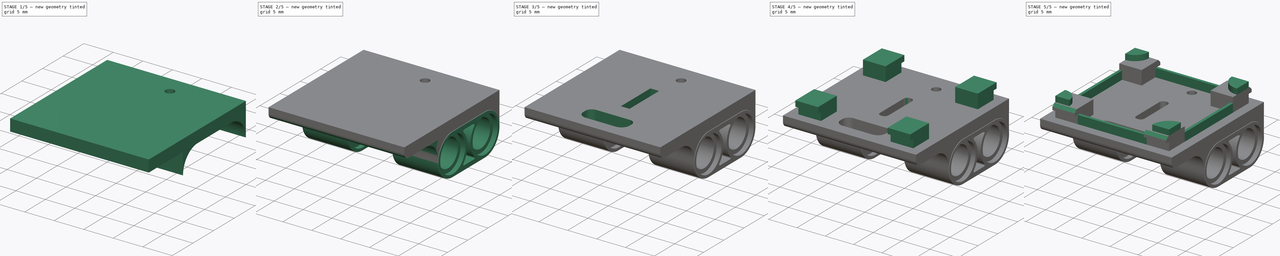
[diagram: build sequence overview — one tinted view per stage of 5, left to right]
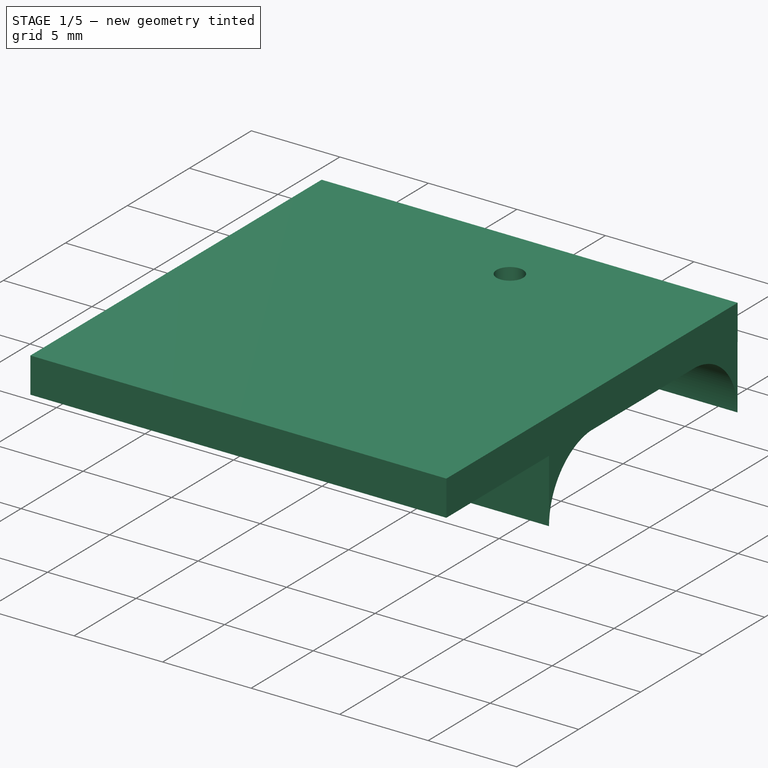
[diagram: stage 1 of 5 — iso view after this stage's code; geometry added in this stage tinted green]
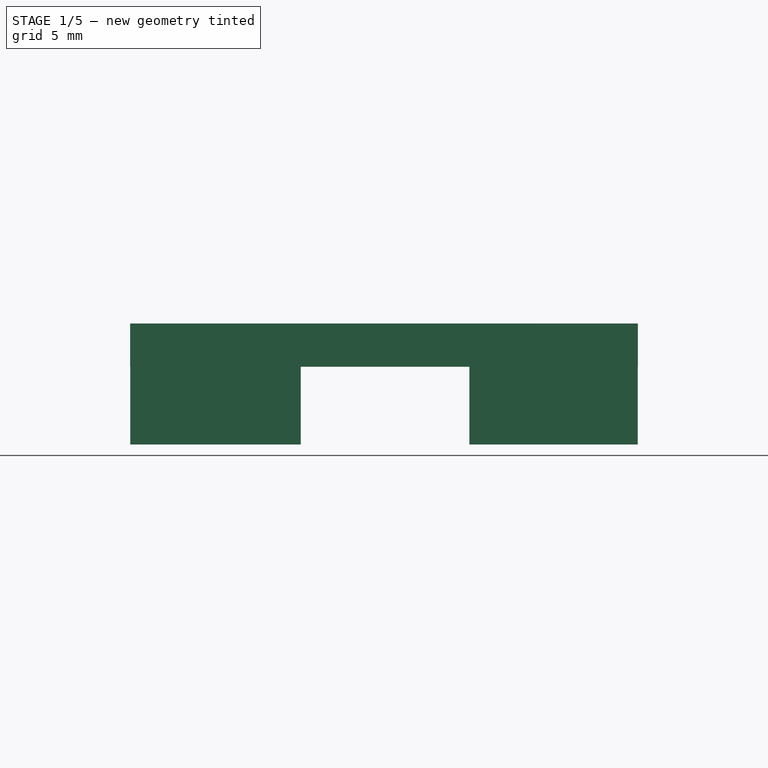
[diagram: stage 1 of 5 — front view after this stage's code; geometry added in this stage tinted green]
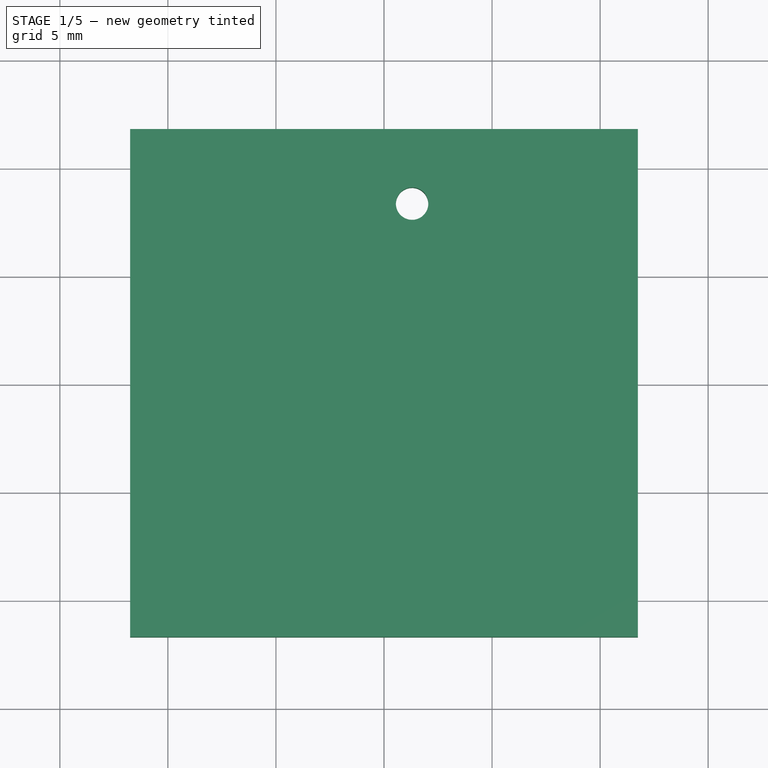
[diagram: stage 1 of 5 — top view after this stage's code; geometry added in this stage tinted green]
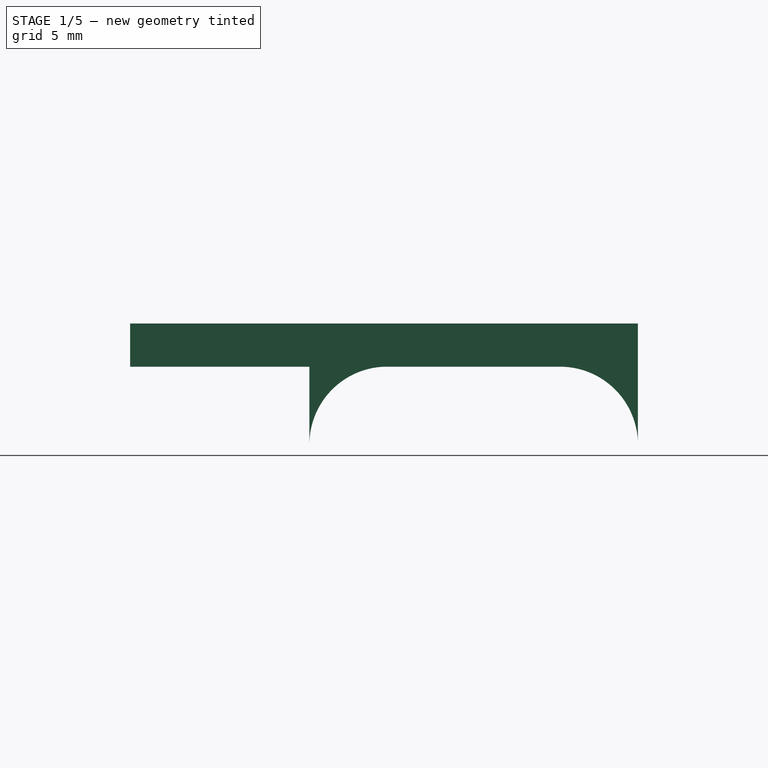
[diagram: stage 1 of 5 — right view after this stage's code; geometry added in this stage tinted green]
FCSTD DOCUMENT  (FreeCAD 0.20R29177 +426 (Git))
Label: CaseBottom
License: All rights reserved
LicenseURL: http://en.wikipedia.org/wiki/All_rights_reserved
objects: Sketcher::SketchObject×11, Part::Extrusion×11, Part::MultiFuse×4, Part::Cut×3, Part::Fillet×3, Part::Feature×2, Part::Chamfer×1
note: 35 computed .brp shape members not serialized (recipe doc carries the construction recipe); baked Part::Feature solids carry a one-line shape summary decoded from their .brp

FEATURE [Sketcher::SketchObject] Sketch
  FullyConstrained = true
  sketch-geometry (7):
    g0: LineSegment StartX=-11.75 StartY=-11.75 StartZ=0 EndX=11.75 EndY=-11.75 EndZ=0
    g1: LineSegment StartX=11.75 StartY=-11.75 StartZ=0 EndX=11.75 EndY=11.75 EndZ=0
    g2: LineSegment StartX=11.75 StartY=11.75 StartZ=0 EndX=-11.75 EndY=11.75 EndZ=0
    g3: LineSegment StartX=-11.75 StartY=11.75 StartZ=0 EndX=-11.75 EndY=-11.75 EndZ=0
    g4: GeomPoint X=0 Y=11.75 Z=0
    g5: GeomPoint X=-11.75 Y=0 Z=0
    g6: Circle CenterX=1.3 CenterY=8.3 CenterZ=0 NormalX=0 NormalY=0 NormalZ=1 AngleXU=0 Radius=0.75
  constraints (17):
    c: Coincident(g0,g1)
    c: Coincident(g1,g2)
    c: Coincident(g2,g3)
    c: Coincident(g3,g0)
    c: Horizontal(g0)
    c: Horizontal(g2)
    c: Vertical(g1)
    c: Vertical(g3)
    c: Symmetric(g3,g3,g5)
    c: Symmetric(g2,g2,g4)
    c: PointOnObject(g4,g-2)
    c: PointOnObject(g5,g-1)
    c: DistanceX(g2,g2) = 23.5
    c: DistanceY(g1,g1) = 23.5
    c: DistanceX(g4,g6) = 1.3
    c: DistanceY(g-1,g6) = 8.3
    c: Radius(g6) = 0.75
FEATURE [Part::Extrusion] Extrude
  Base = -> Sketch
  Dir = (0,0,1)
  DirMode = 2
  FaceMakerClass = Part::FaceMakerBullseye
  LengthFwd = 2
  LengthRev = 0
  Solid = true
  Symmetric = false
FEATURE [Sketcher::SketchObject] Sketch005
  FullyConstrained = false
  MapMode = 5
  Placement = pos=(11.75,0,0) rot=(0.57735,0.57735,0.57735;2.0944rad)
  sketch-geometry (6):
    g0: LineSegment StartX=-2e-16 StartY=0 StartZ=0 EndX=-3.45317 EndY=0 EndZ=0
    g1: ArcOfCircle CenterX=0.149928 CenterY=-3.59998 CenterZ=0 NormalX=0 NormalY=0 NormalZ=1 AngleXU=0 Radius=3.6031 StartAngle=1.61242 EndAngle=3.14159
    g2: LineSegment StartX=11.75 StartY=0 StartZ=0 EndX=8.14993 EndY=0 EndZ=0
    g3: ArcOfCircle CenterX=8.14993 CenterY=-3.60019 CenterZ=0 NormalX=0 NormalY=0 NormalZ=1 AngleXU=0 Radius=3.60019 StartAngle=0 EndAngle=1.5708
    g4: LineSegment StartX=-3.45317 StartY=-3.59998 StartZ=0 EndX=-3.45317 EndY=0 EndZ=0
    g5: LineSegment StartX=11.75 StartY=0 StartZ=0 EndX=11.7501 EndY=-3.60019 EndZ=0
  constraints (12):
    c: PointOnObject(g0,g-1)
    c: Coincident(g-1,g0)
    c: Coincident(g1,g0)
    c: Horizontal(g1,g1)
    c: PointOnObject(g2,g-1)
    c: Coincident(g2,g3)
    c: Horizontal(g3,g3)
    c: Coincident(g4,g1)
    c: Coincident(g4,g0)
    c: Vertical(g4)
    c: Coincident(g2,g5)
    c: Coincident(g5,g3)
FEATURE [Part::Extrusion] Extrude007
  Base = -> Sketch005
  Dir = (1,0,0)
  DirMode = 2
  FaceMakerClass = Part::FaceMakerBullseye
  LengthFwd = -11.69
  LengthRev = 3.8
  Placement = pos=(-11.8,0,0) rot=(0,0,1;0rad)
  Solid = true
  Symmetric = false
FEATURE [Sketcher::SketchObject] Sketch006
  FullyConstrained = false
  MapMode = 5
  Placement = pos=(11.75,0,0) rot=(0.57735,0.57735,0.57735;2.0944rad)
  sketch-geometry (6):
    g0: LineSegment StartX=-2e-16 StartY=0 StartZ=0 EndX=-3.45317 EndY=0 EndZ=0
    g1: ArcOfCircle CenterX=0.149928 CenterY=-3.59998 CenterZ=0 NormalX=0 NormalY=0 NormalZ=1 AngleXU=0 Radius=3.6031 StartAngle=1.61242 EndAngle=3.14159
    g2: LineSegment StartX=11.75 StartY=0 StartZ=0 EndX=8.14993 EndY=0 EndZ=0
    g3: ArcOfCircle CenterX=8.14993 CenterY=-3.60019 CenterZ=0 NormalX=0 NormalY=0 NormalZ=1 AngleXU=0 Radius=3.60019 StartAngle=0 EndAngle=1.5708
    g4: LineSegment StartX=-3.45317 StartY=-3.59998 StartZ=0 EndX=-3.45317 EndY=0 EndZ=0
    g5: LineSegment StartX=11.75 StartY=0 StartZ=0 EndX=11.7501 EndY=-3.60019 EndZ=0
  constraints (12):
    c: PointOnObject(g0,g-1)
    c: Coincident(g-1,g0)
    c: Coincident(g1,g0)
    c: Horizontal(g1,g1)
    c: PointOnObject(g2,g-1)
    c: Coincident(g2,g3)
    c: Horizontal(g3,g3)
    c: Coincident(g4,g1)
    c: Coincident(g4,g0)
    c: Vertical(g4)
    c: Coincident(g2,g5)
    c: Coincident(g5,g3)
FEATURE [Part::Extrusion] Extrude008
  Base = -> Sketch006
  Dir = (1,0,0)
  DirMode = 2
  FaceMakerClass = Part::FaceMakerBullseye
  LengthFwd = 11.79
  LengthRev = -4
  Placement = pos=(-11.8,0,0) rot=(0,0,1;0rad)
  Solid = true
  Symmetric = false
FEATURE [Part::MultiFuse] Fusion
  Shapes = -> [Extrude,Extrude007,Extrude008]
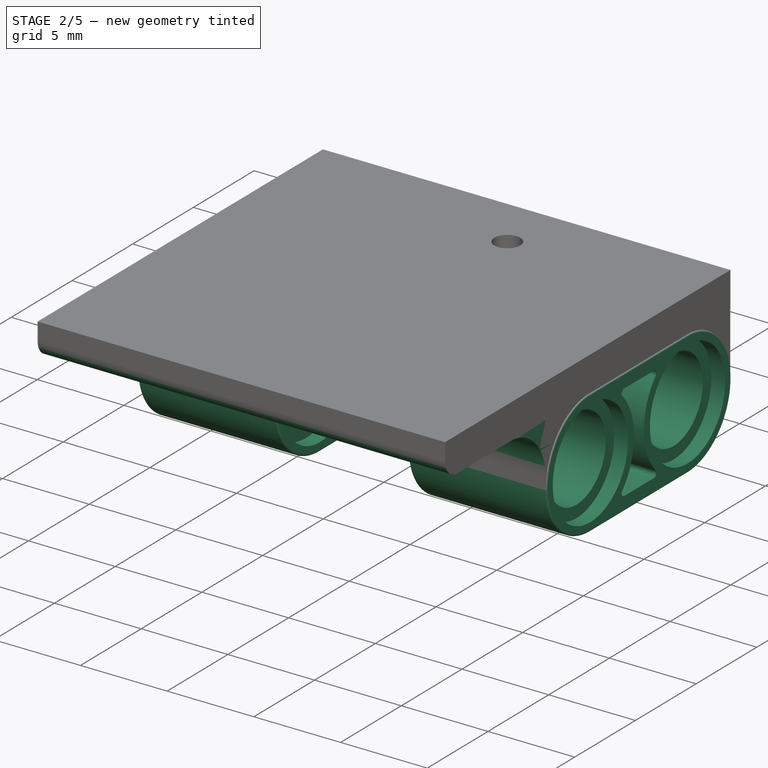
[diagram: stage 2 of 5 — iso view after this stage's code; geometry added in this stage tinted green]
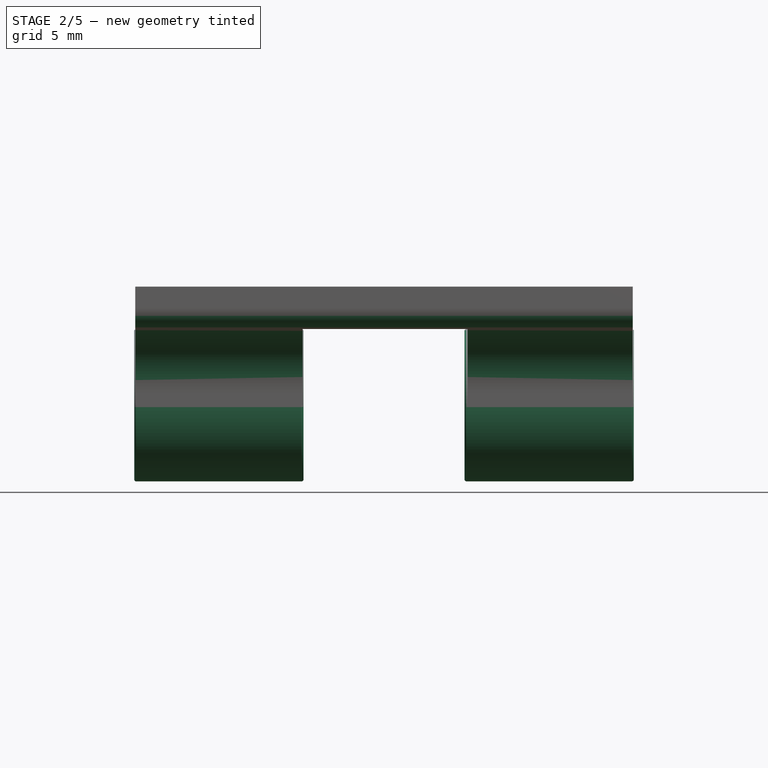
[diagram: stage 2 of 5 — front view after this stage's code; geometry added in this stage tinted green]
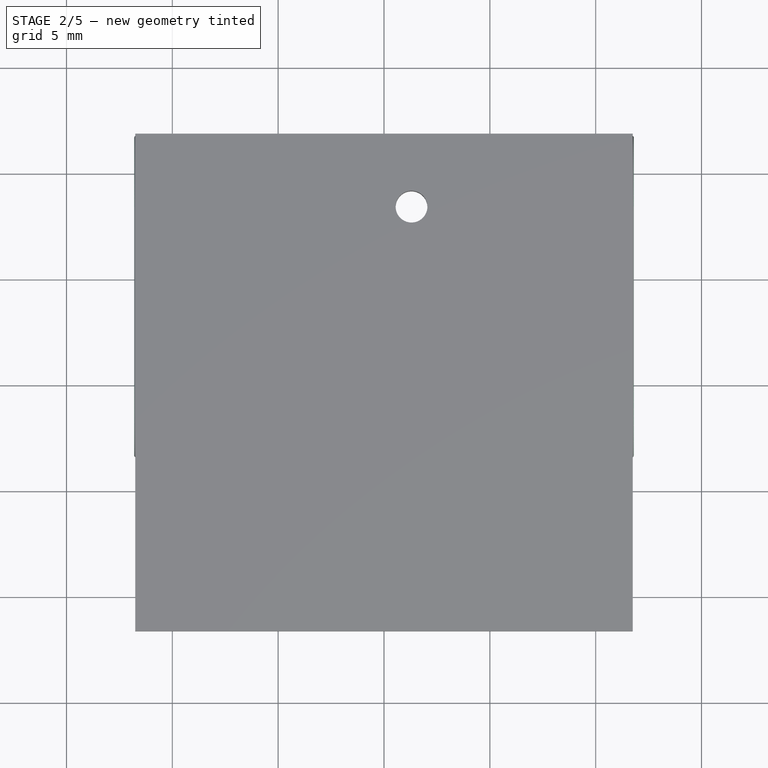
[diagram: stage 2 of 5 — top view after this stage's code; geometry added in this stage tinted green]
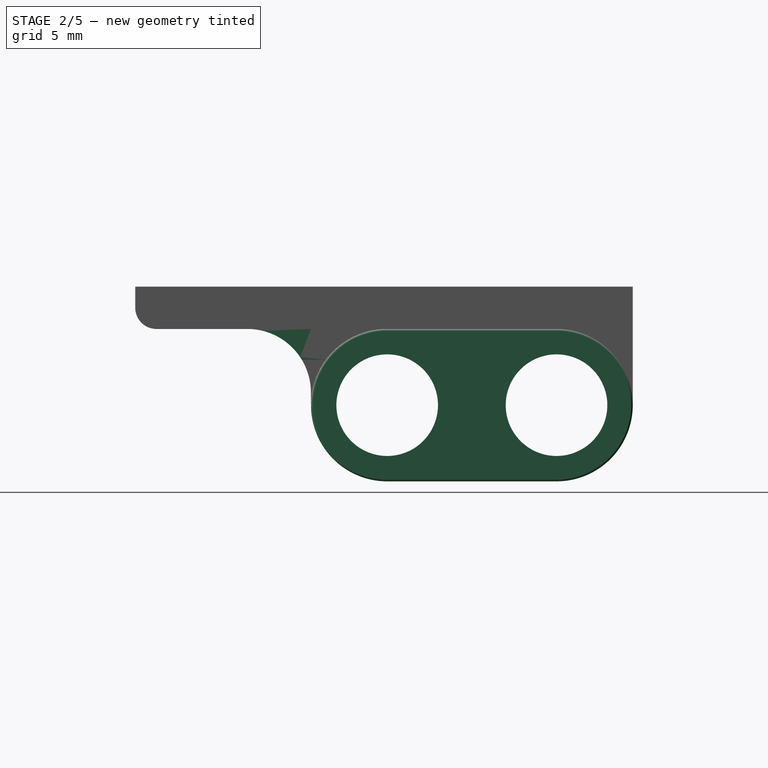
[diagram: stage 2 of 5 — right view after this stage's code; geometry added in this stage tinted green]
FEATURE [Sketcher::SketchObject] Sketch002
  FullyConstrained = false
  sketch-geometry (4):
    g0: LineSegment StartX=8.06796 StartY=-6.77796 StartZ=0 EndX=87.3678 EndY=-6.77796 EndZ=0
    g1: LineSegment StartX=87.3678 StartY=-6.77796 StartZ=0 EndX=87.3678 EndY=123.231 EndZ=0
    g2: LineSegment StartX=87.3678 StartY=123.231 StartZ=0 EndX=8.06796 EndY=123.231 EndZ=0
    g3: LineSegment StartX=8.06796 StartY=123.231 StartZ=0 EndX=8.06796 EndY=-6.77796 EndZ=0
  constraints (8):
    c: Coincident(g0,g1)
    c: Coincident(g1,g2)
    c: Coincident(g2,g3)
    c: Coincident(g3,g0)
    c: Horizontal(g0)
    c: Horizontal(g2)
    c: Vertical(g1)
    c: Vertical(g3)
FEATURE [Part::Extrusion] Extrude002
  Base = -> Sketch002
  Dir = (0,0,1)
  DirMode = 2
  FaceMakerClass = Part::FaceMakerBullseye
  LengthFwd = 20
  LengthRev = 2
  Solid = true
  Symmetric = false
FEATURE [Part::Feature] Feature001  label="LEGO Technic beam- 199 Dark Stone Grey v004"
  shape: bbox 77.8 x 119.8 x 8 mm, 1474 faces, 8 solids (baked)
FEATURE [Part::Cut] Cut001
  Base = -> Feature001
  Placement = pos=(3.8,0.15,-0.1) rot=(0,1,0;1.5708rad)
  Tool = -> Extrude002
FEATURE [Part::Feature] Feature002  label="LEGO Technic beam- 199 Dark Stone Grey v005"
  shape: bbox 77.8 x 119.8 x 8 mm, 1474 faces, 8 solids (baked)
FEATURE [Sketcher::SketchObject] Sketch003
  FullyConstrained = false
  sketch-geometry (4):
    g0: LineSegment StartX=8.06796 StartY=-6.77796 StartZ=0 EndX=87.3678 EndY=-6.77796 EndZ=0
    g1: LineSegment StartX=87.3678 StartY=-6.77796 StartZ=0 EndX=87.3678 EndY=123.231 EndZ=0
    g2: LineSegment StartX=87.3678 StartY=123.231 StartZ=0 EndX=8.06796 EndY=123.231 EndZ=0
    g3: LineSegment StartX=8.06796 StartY=123.231 StartZ=0 EndX=8.06796 EndY=-6.77796 EndZ=0
  constraints (8):
    c: Coincident(g0,g1)
    c: Coincident(g1,g2)
    c: Coincident(g2,g3)
    c: Coincident(g3,g0)
    c: Horizontal(g0)
    c: Horizontal(g2)
    c: Vertical(g1)
    c: Vertical(g3)
FEATURE [Part::Extrusion] Extrude003
  Base = -> Sketch003
  Dir = (0,0,1)
  DirMode = 2
  FaceMakerClass = Part::FaceMakerBullseye
  LengthFwd = 20
  LengthRev = 2
  Solid = true
  Symmetric = false
FEATURE [Part::Cut] Cut002
  Base = -> Feature002
  Placement = pos=(-11.8,0.15,-0.1) rot=(0,1,0;1.5708rad)
  Tool = -> Extrude003
FEATURE [Part::Fillet] Fillet
  Base = -> Fusion
  Edges = 3 edges: [Edge3 r=1,Edge22 r=3,Edge25 r=3]
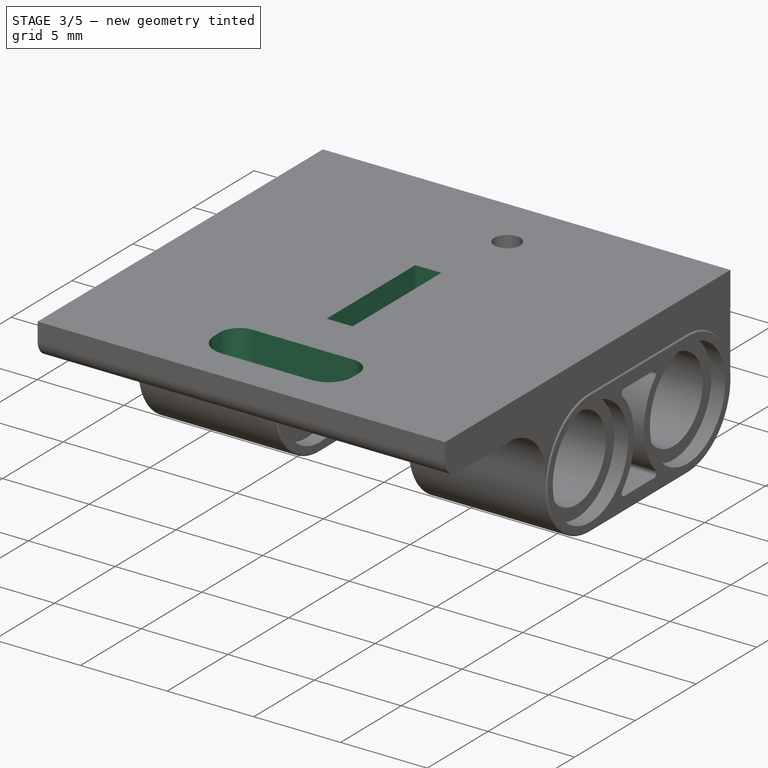
[diagram: stage 3 of 5 — iso view after this stage's code; geometry added in this stage tinted green]
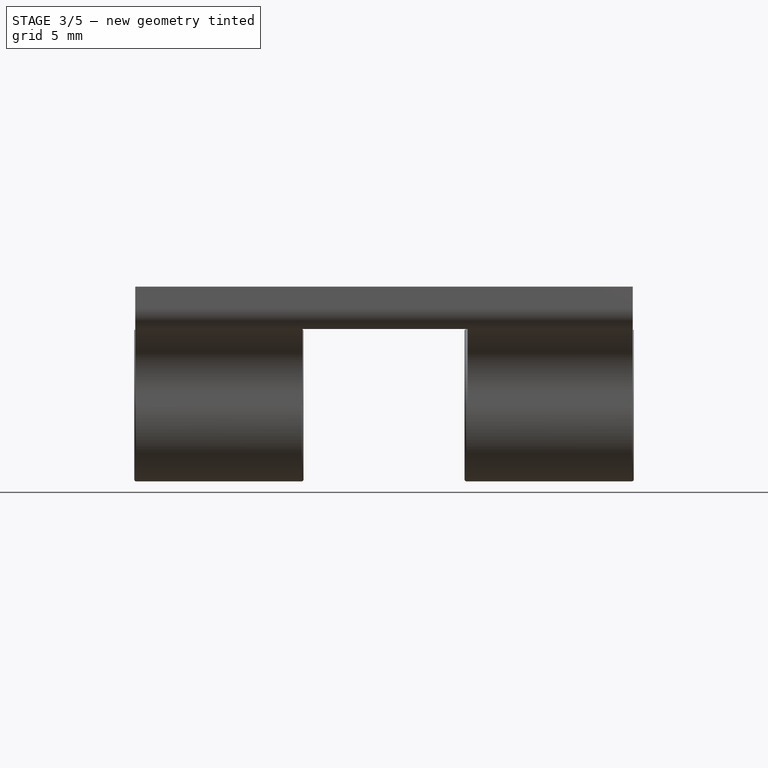
[diagram: stage 3 of 5 — front view after this stage's code; geometry added in this stage tinted green]
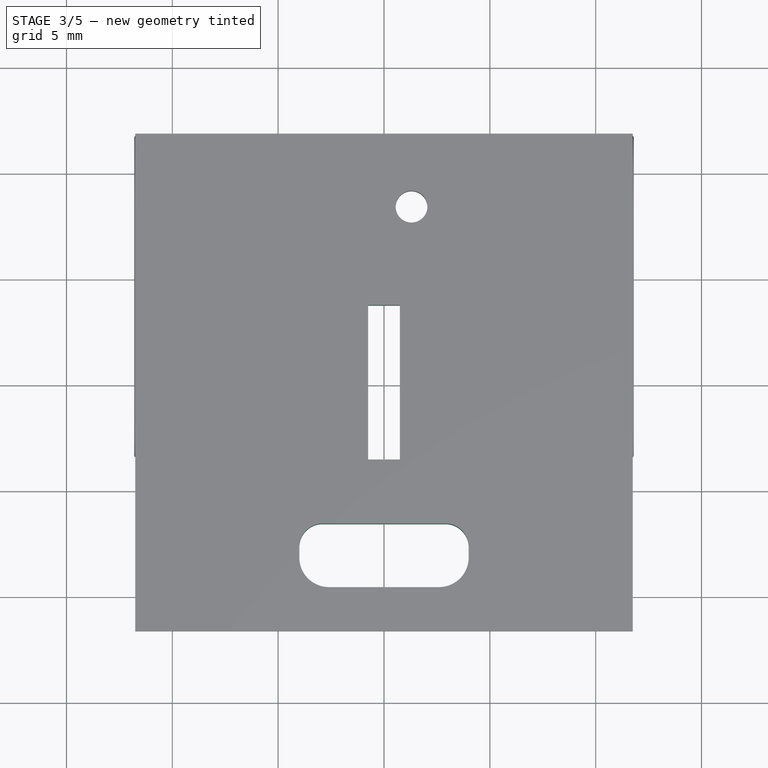
[diagram: stage 3 of 5 — top view after this stage's code; geometry added in this stage tinted green]
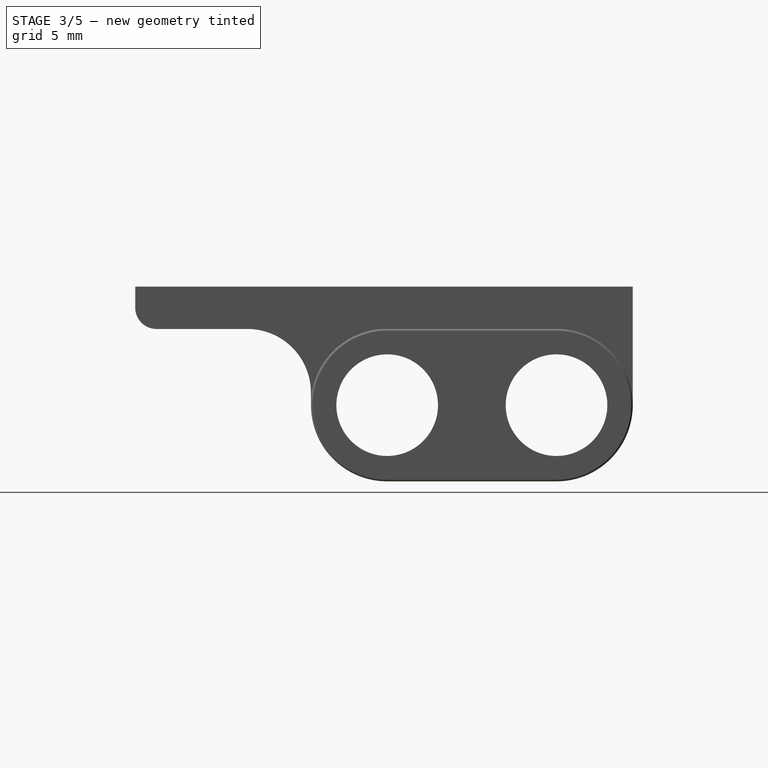
[diagram: stage 3 of 5 — right view after this stage's code; geometry added in this stage tinted green]
FEATURE [Part::MultiFuse] Fusion001
  Shapes = -> [Cut001,Cut002,Fillet]
FEATURE [Sketcher::SketchObject] Sketch007
  FullyConstrained = true
  MapMode = 2
  Support = -> [Fusion001]
  sketch-geometry (12):
    g0: LineSegment StartX=-0.75 StartY=3.65 StartZ=0 EndX=0.75 EndY=3.65 EndZ=0
    g1: LineSegment StartX=0.75 StartY=3.65 StartZ=0 EndX=0.75 EndY=-3.65 EndZ=0
    g2: LineSegment StartX=0.75 StartY=-3.65 StartZ=0 EndX=-0.75 EndY=-3.65 EndZ=0
    g3: LineSegment StartX=-0.75 StartY=-3.65 StartZ=0 EndX=-0.75 EndY=3.65 EndZ=0
    g4: GeomPoint X=0 Y=3.65 Z=0
    g5: GeomPoint X=0.75 Y=1e-16 Z=0
    g6: LineSegment StartX=-4 StartY=-6.675 StartZ=0 EndX=4 EndY=-6.675 EndZ=0
    g7: LineSegment StartX=4 StartY=-6.675 StartZ=0 EndX=4 EndY=-9.675 EndZ=0
    g8: LineSegment StartX=4 StartY=-9.675 StartZ=0 EndX=-4 EndY=-9.675 EndZ=0
    g9: LineSegment StartX=-4 StartY=-9.675 StartZ=0 EndX=-4 EndY=-6.675 EndZ=0
    g10: GeomPoint X=0 Y=-6.675 Z=0
    g11: GeomPoint X=-4 Y=-8.175 Z=0
  constraints (28):
    c: Coincident(g0,g1)
    c: Coincident(g1,g2)
    c: Coincident(g2,g3)
    c: Coincident(g3,g0)
    c: Horizontal(g0)
    c: Horizontal(g2)
    c: Vertical(g1)
    c: Vertical(g3)
    c: Symmetric(g0,g0,g4)
    c: Symmetric(g1,g1,g5)
    c: PointOnObject(g4,g-2)
    c: PointOnObject(g5,g-1)
    c: DistanceX(g0,g0) = 1.5
    c: DistanceY(g1,g1) = 7.3
    c: Coincident(g6,g7)
    c: Coincident(g7,g8)
    c: Coincident(g8,g9)
    c: Coincident(g9,g6)
    c: Horizontal(g6)
    c: Horizontal(g8)
    c: Vertical(g7)
    c: Vertical(g9)
    c: DistanceY(g7,g7) = 3
    c: DistanceX(g6,g6) = 8
    c: Symmetric(g6,g6,g10)
    c: PointOnObject(g10,g-2)
    c: Symmetric(g9,g9,g11)
    c: DistanceY(g11,g-1) = 8.175
FEATURE [Part::Extrusion] Extrude009
  Base = -> Sketch007
  Dir = (0,0,1)
  DirMode = 2
  FaceMakerClass = Part::FaceMakerBullseye
  LengthFwd = 3
  LengthRev = 0
  Solid = true
  Symmetric = false
FEATURE [Part::Cut] Cut
  Base = -> Fusion001
  Tool = -> Extrude009
FEATURE [Part::Fillet] Fillet001
  Base = -> Cut
  Edges = 4 edges: [Edge181 r=1.1,Edge183 r=1.4,Edge185 r=1.4,Edge187 r=1.1]
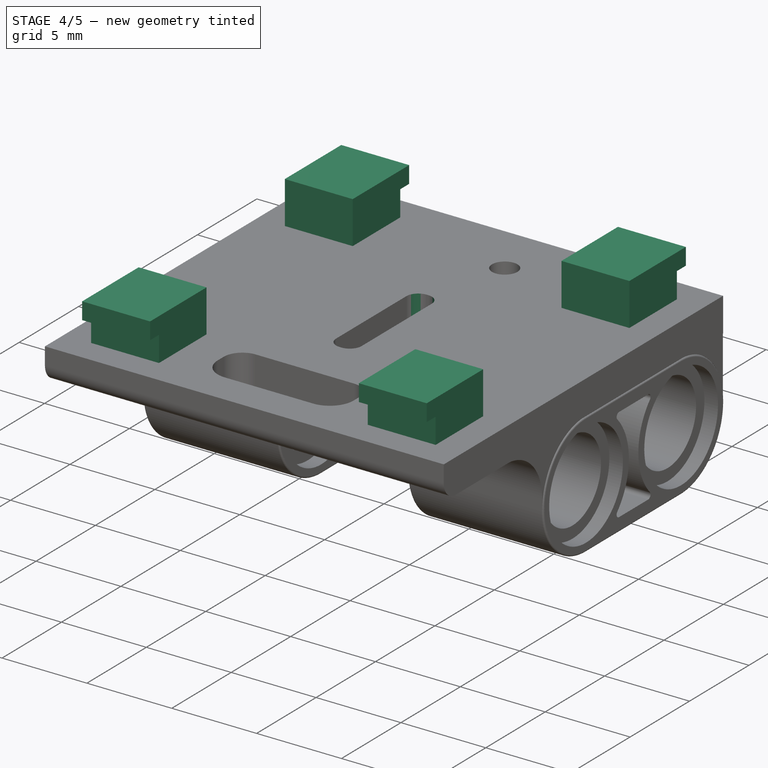
[diagram: stage 4 of 5 — iso view after this stage's code; geometry added in this stage tinted green]
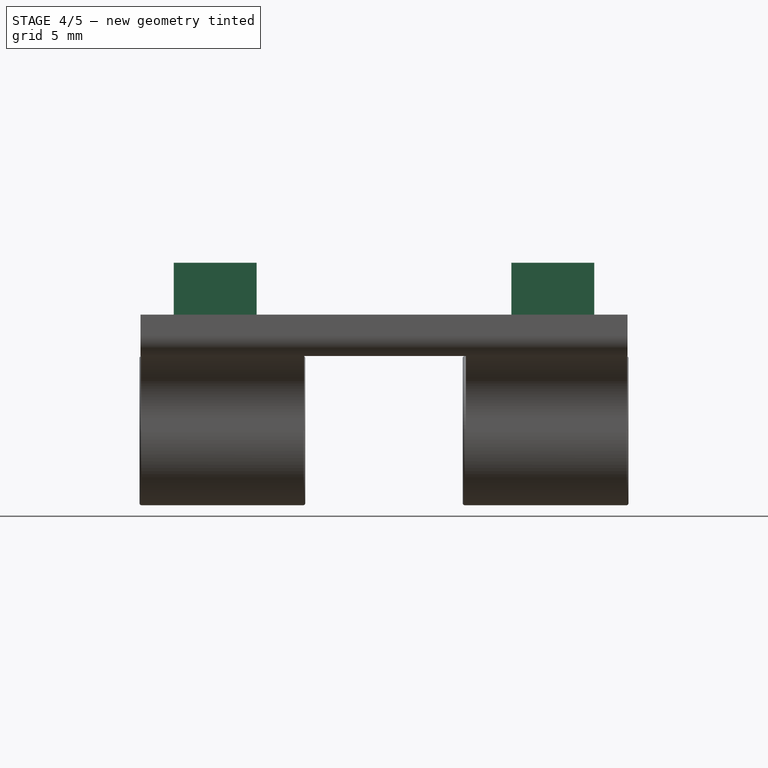
[diagram: stage 4 of 5 — front view after this stage's code; geometry added in this stage tinted green]
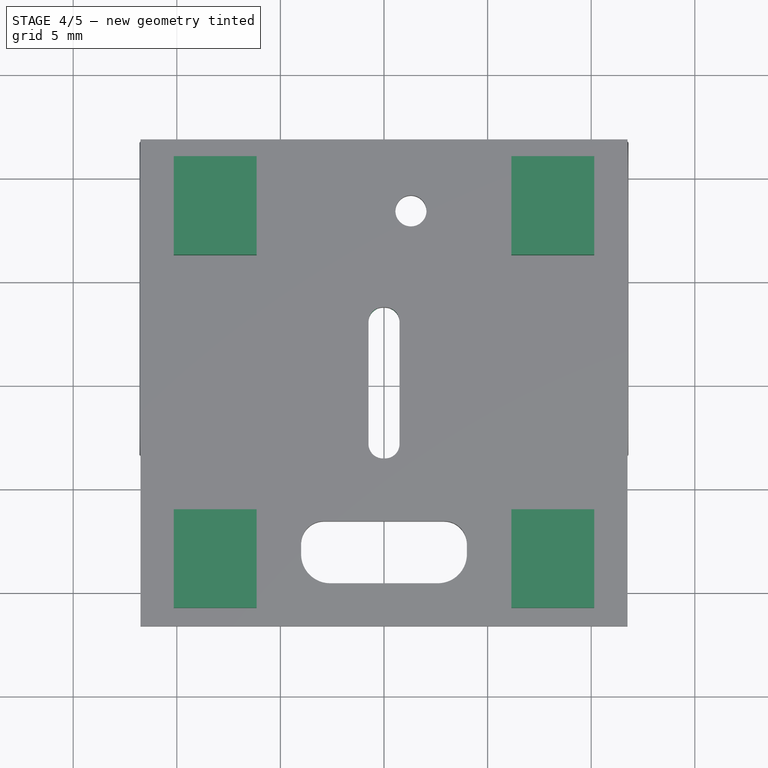
[diagram: stage 4 of 5 — top view after this stage's code; geometry added in this stage tinted green]
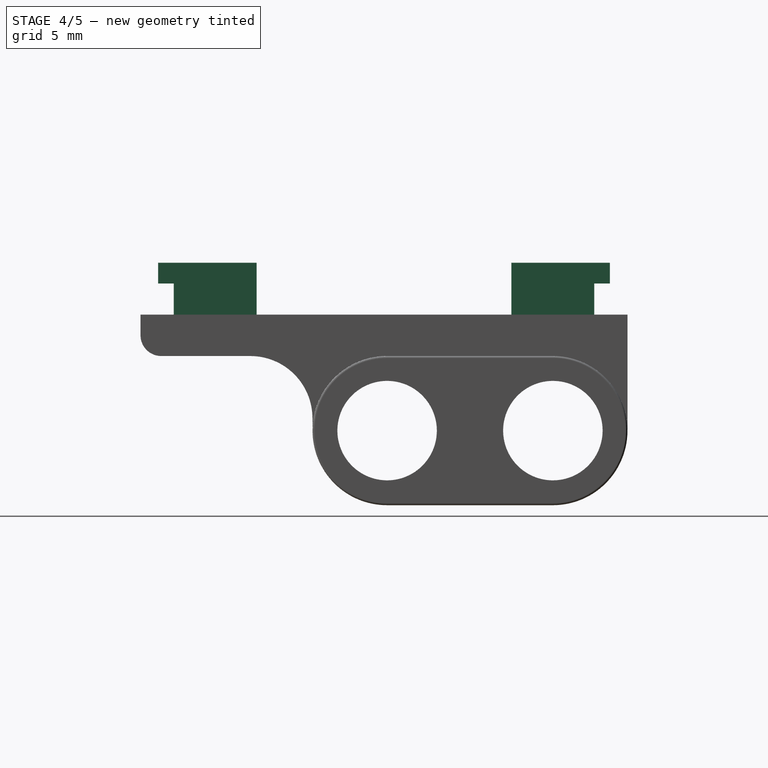
[diagram: stage 4 of 5 — right view after this stage's code; geometry added in this stage tinted green]
FEATURE [Part::Fillet] Fillet002
  Base = -> Fillet001
  Edges = 4 edges r=0.7: [Edge116,Edge118,Edge120,Edge122]
FEATURE [Sketcher::SketchObject] Sketch008
  ExternalGeometry = -> [Fillet002]
  FullyConstrained = true
  MapMode = 5
  Placement = pos=(0,0,2) rot=(0,0,1;0rad)
  Support = -> [Fillet002]
  sketch-geometry (20):
    g0: LineSegment StartX=-10.15 StartY=10.15 StartZ=0 EndX=10.15 EndY=10.15 EndZ=0
    g1: LineSegment StartX=10.15 StartY=10.15 StartZ=0 EndX=10.15 EndY=-10.15 EndZ=0
    g2: LineSegment StartX=10.15 StartY=-10.15 StartZ=0 EndX=-10.15 EndY=-10.15 EndZ=0
    g3: LineSegment StartX=-10.15 StartY=-10.15 StartZ=0 EndX=-10.15 EndY=10.15 EndZ=0
    g4: LineSegment StartX=-10.15 StartY=10.15 StartZ=0 EndX=-6.15 EndY=10.15 EndZ=0
    g5: LineSegment StartX=-6.15 StartY=10.15 StartZ=0 EndX=-6.15 EndY=6.15 EndZ=0
    g6: LineSegment StartX=-6.15 StartY=6.15 StartZ=0 EndX=-10.15 EndY=6.15 EndZ=0
    g7: LineSegment StartX=-10.15 StartY=6.15 StartZ=0 EndX=-10.15 EndY=10.15 EndZ=0
    g8: LineSegment StartX=10.15 StartY=10.15 StartZ=0 EndX=6.15 EndY=10.15 EndZ=0
    g9: LineSegment StartX=6.15 StartY=10.15 StartZ=0 EndX=6.15 EndY=6.15 EndZ=0
    g10: LineSegment StartX=6.15 StartY=6.15 StartZ=0 EndX=10.15 EndY=6.15 EndZ=0
    g11: LineSegment StartX=10.15 StartY=6.15 StartZ=0 EndX=10.15 EndY=10.15 EndZ=0
    g12: LineSegment StartX=10.15 StartY=-10.15 StartZ=0 EndX=6.15 EndY=-10.15 EndZ=0
    g13: LineSegment StartX=6.15 StartY=-10.15 StartZ=0 EndX=6.15 EndY=-6.15 EndZ=0
    g14: LineSegment StartX=6.15 StartY=-6.15 StartZ=0 EndX=10.15 EndY=-6.15 EndZ=0
    g15: LineSegment StartX=10.15 StartY=-6.15 StartZ=0 EndX=10.15 EndY=-10.15 EndZ=0
    g16: LineSegment StartX=-10.15 StartY=-10.15 StartZ=0 EndX=-6.15 EndY=-10.15 EndZ=0
    g17: LineSegment StartX=-6.15 StartY=-10.15 StartZ=0 EndX=-6.15 EndY=-6.15 EndZ=0
    g18: LineSegment StartX=-6.15 StartY=-6.15 StartZ=0 EndX=-10.15 EndY=-6.15 EndZ=0
    g19: LineSegment StartX=-10.15 StartY=-6.15 StartZ=0 EndX=-10.15 EndY=-10.15 EndZ=0
  constraints (56):
    c: Coincident(g0,g1)
    c: Coincident(g1,g2)
    c: Coincident(g2,g3)
    c: Coincident(g3,g0)
    c: Horizontal(g0)
    c: Horizontal(g2)
    c: Vertical(g1)
    c: Vertical(g3)
    c: DistanceY(g0,g-5) = 1.6
    c: DistanceX(g0,g-5) = 1.6
    c: Coincident(g4,g5)
    c: Coincident(g5,g6)
    c: Coincident(g6,g7)
    c: Coincident(g7,g4)
    c: Horizontal(g4)
    c: Horizontal(g6)
    c: Vertical(g5)
    c: Vertical(g7)
    c: Coincident(g4,g0)
    c: Coincident(g8,g9)
    c: Coincident(g9,g10)
    c: Coincident(g10,g11)
    c: Coincident(g11,g8)
    c: Horizontal(g8)
    c: Horizontal(g10)
    c: Vertical(g9)
    c: Vertical(g11)
    c: Coincident(g8,g0)
    c: Coincident(g12,g13)
    c: Coincident(g13,g14)
    c: Coincident(g14,g15)
    c: Coincident(g15,g12)
    c: Horizontal(g12)
    c: Horizontal(g14)
    c: Vertical(g13)
    c: Vertical(g15)
    c: Coincident(g12,g1)
    c: Coincident(g16,g17)
    c: Coincident(g17,g18)
    c: Coincident(g18,g19)
    c: Coincident(g19,g16)
    c: Horizontal(g16)
    c: Horizontal(g18)
    c: Vertical(g17)
    c: Vertical(g19)
    c: Coincident(g16,g2)
    c: Equal(g6,g18)
    c: Equal(g18,g10)
    c: Equal(g10,g14)
    c: Equal(g9,g5)
    c: Equal(g5,g17)
    c: Equal(g17,g13)
    c: DistanceY(g9,g9) = 4
    c: DistanceX(g10,g10) = 4
    c: DistanceX(g-6,g16) = 1.6
    c: DistanceY(g-6,g16) = 1.6
FEATURE [Part::Extrusion] Extrude010
  Base = -> Sketch008
  Dir = (0,0,1)
  DirMode = 2
  FaceMakerClass = Part::FaceMakerBullseye
  LengthFwd = 2.5
  LengthRev = 0
  Solid = true
  Symmetric = false
FEATURE [Sketcher::SketchObject] Sketch009
  ExternalGeometry = -> [Extrude010]
  FullyConstrained = true
  MapMode = 5
  Placement = pos=(0,-10.15,0) rot=(1,0,0;1.5708rad)
  Support = -> [Extrude010]
  sketch-geometry (8):
    g0: LineSegment StartX=-10.15 StartY=4.5 StartZ=0 EndX=-6.15 EndY=4.5 EndZ=0
    g1: LineSegment StartX=-6.15 StartY=4.5 StartZ=0 EndX=-6.15 EndY=3.5 EndZ=0
    g2: LineSegment StartX=-6.15 StartY=3.5 StartZ=0 EndX=-10.15 EndY=3.5 EndZ=0
    g3: LineSegment StartX=-10.15 StartY=3.5 StartZ=0 EndX=-10.15 EndY=4.5 EndZ=0
    g4: LineSegment StartX=6.15 StartY=4.5 StartZ=0 EndX=10.15 EndY=4.5 EndZ=0
    g5: LineSegment StartX=10.15 StartY=4.5 StartZ=0 EndX=10.15 EndY=3.5 EndZ=0
    g6: LineSegment StartX=10.15 StartY=3.5 StartZ=0 EndX=6.15 EndY=3.5 EndZ=0
    g7: LineSegment StartX=6.15 StartY=3.5 StartZ=0 EndX=6.15 EndY=4.5 EndZ=0
  constraints (22):
    c: Coincident(g0,g1)
    c: Coincident(g1,g2)
    c: Coincident(g2,g3)
    c: Coincident(g3,g0)
    c: Horizontal(g0)
    c: Horizontal(g2)
    c: Vertical(g1)
    c: Vertical(g3)
    c: Coincident(g0,g-4)
    c: PointOnObject(g1,g-5)
    c: Coincident(g4,g5)
    c: Coincident(g5,g6)
    c: Coincident(g6,g7)
    c: Coincident(g7,g4)
    c: Horizontal(g4)
    c: Horizontal(g6)
    c: Vertical(g5)
    c: Vertical(g7)
    c: Coincident(g4,g-7)
    c: PointOnObject(g5,g-8)
    c: Horizontal(g6,g1)
    c: DistanceY(g1,g1) = 1
FEATURE [Sketcher::SketchObject] Sketch010
  ExternalGeometry = -> [Sketch009]
  FullyConstrained = true
  MapMode = 5
  Placement = pos=(0,10.15,0) rot=(0,0.707107,0.707107;3.14159rad)
  Support = -> [Extrude010]
  sketch-geometry (8):
    g0: LineSegment StartX=-10.15 StartY=3.5 StartZ=0 EndX=-6.15 EndY=3.5 EndZ=0
    g1: LineSegment StartX=-6.15 StartY=3.5 StartZ=0 EndX=-6.15 EndY=4.5 EndZ=0
    g2: LineSegment StartX=-6.15 StartY=4.5 StartZ=0 EndX=-10.15 EndY=4.5 EndZ=0
    g3: LineSegment StartX=-10.15 StartY=4.5 StartZ=0 EndX=-10.15 EndY=3.5 EndZ=0
    g4: LineSegment StartX=6.15 StartY=3.5 StartZ=0 EndX=10.15 EndY=3.5 EndZ=0
    g5: LineSegment StartX=10.15 StartY=3.5 StartZ=0 EndX=10.15 EndY=4.5 EndZ=0
    g6: LineSegment StartX=10.15 StartY=4.5 StartZ=0 EndX=6.15 EndY=4.5 EndZ=0
    g7: LineSegment StartX=6.15 StartY=4.5 StartZ=0 EndX=6.15 EndY=3.5 EndZ=0
  constraints (20):
    c: Coincident(g0,g1)
    c: Coincident(g1,g2)
    c: Coincident(g2,g3)
    c: Coincident(g3,g0)
    c: Horizontal(g0)
    c: Horizontal(g2)
    c: Vertical(g1)
    c: Vertical(g3)
    c: Coincident(g0,g-3)
    c: Coincident(g1,g-4)
    c: Coincident(g4,g5)
    c: Coincident(g5,g6)
    c: Coincident(g6,g7)
    c: Coincident(g7,g4)
    c: Horizontal(g4)
    c: Horizontal(g6)
    c: Vertical(g5)
    c: Vertical(g7)
    c: Coincident(g4,g-5)
    c: Coincident(g5,g-6)
FEATURE [Part::Extrusion] Extrude011
  Base = -> Sketch009
  Dir = (0,-1,2e-16)
  DirMode = 2
  FaceMakerClass = Part::FaceMakerBullseye
  LengthFwd = 0.75
  LengthRev = 0
  Solid = true
  Symmetric = false
FEATURE [Part::Extrusion] Extrude012
  Base = -> Sketch010
  Dir = (0,1,-2e-16)
  DirMode = 2
  FaceMakerClass = Part::FaceMakerBullseye
  LengthFwd = 0.75
  LengthRev = 0
  Solid = true
  Symmetric = false
FEATURE [Part::MultiFuse] Fusion002
  Shapes = -> [Fillet002,Extrude012,Extrude011,Extrude010]
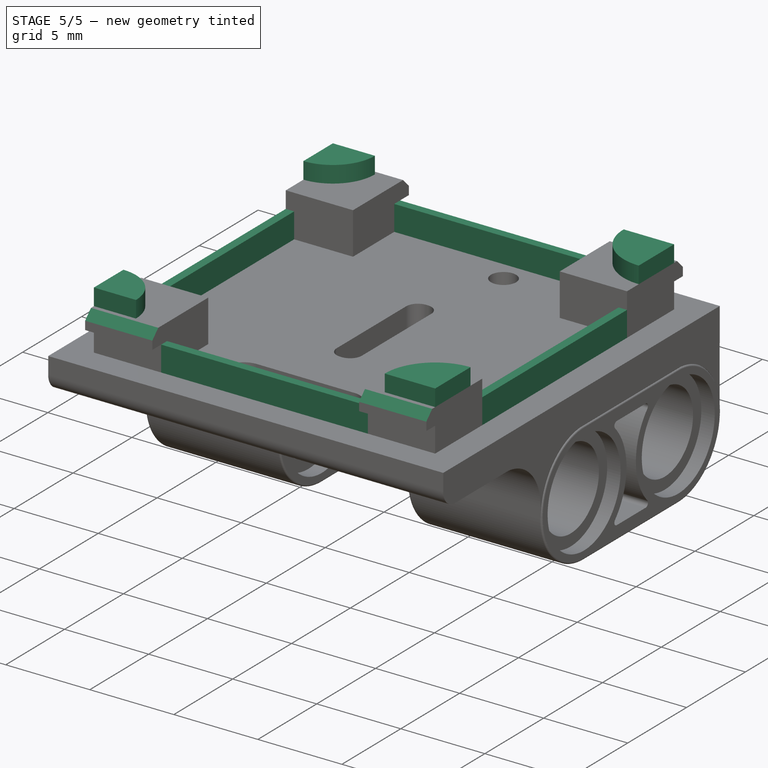
[diagram: stage 5 of 5 — iso view after this stage's code; geometry added in this stage tinted green]
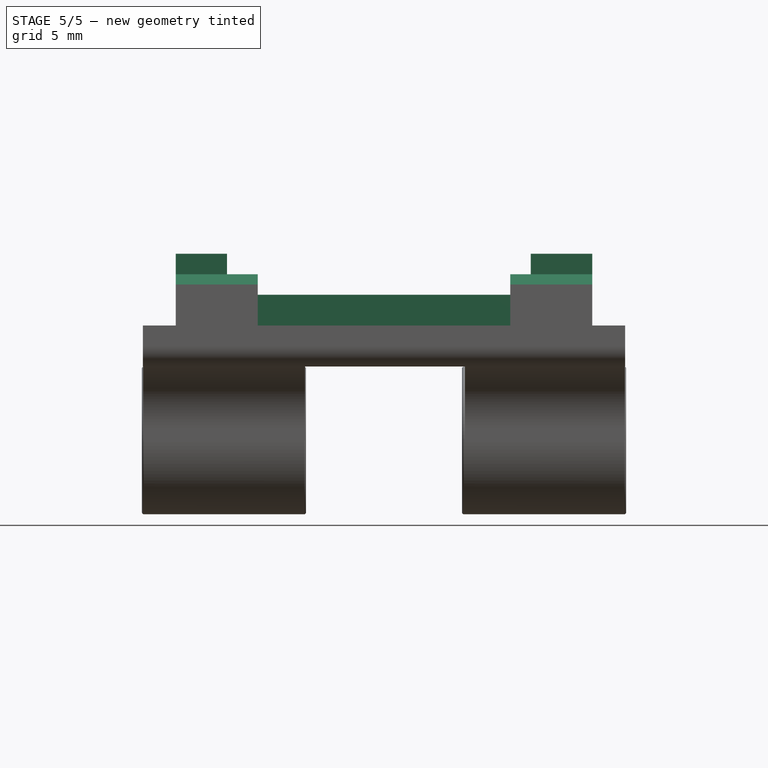
[diagram: stage 5 of 5 — front view after this stage's code; geometry added in this stage tinted green]
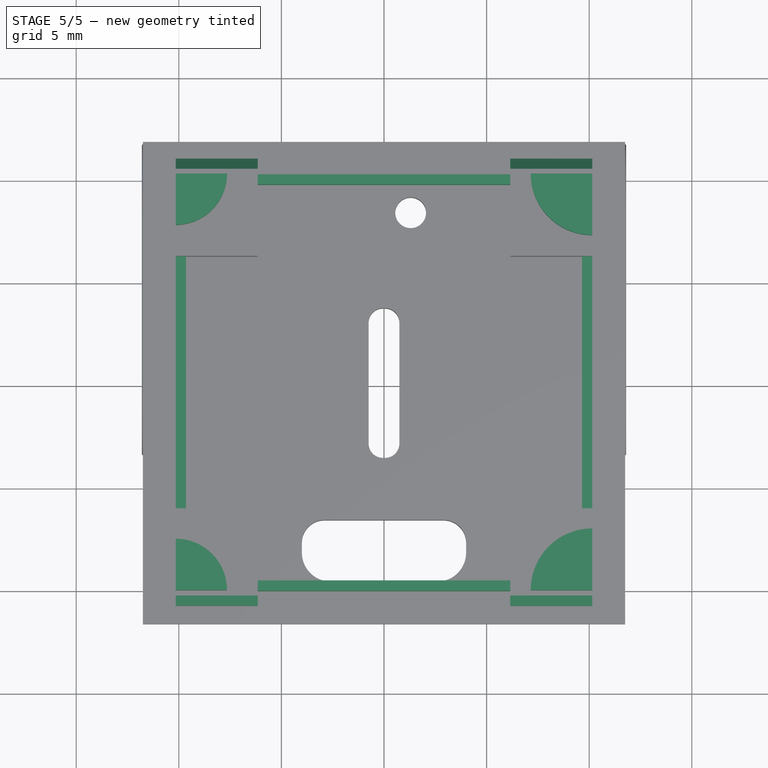
[diagram: stage 5 of 5 — top view after this stage's code; geometry added in this stage tinted green]
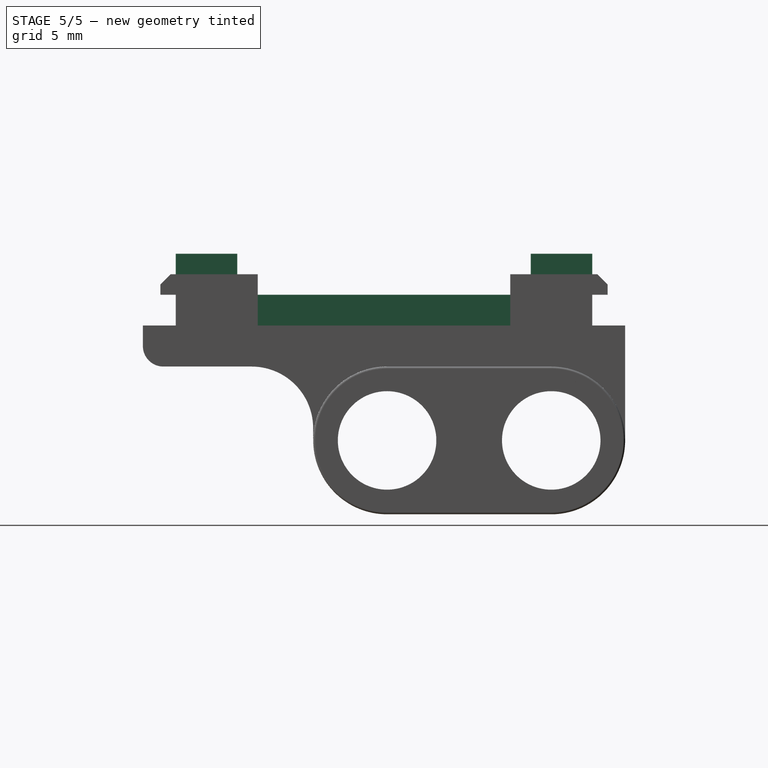
[diagram: stage 5 of 5 — right view after this stage's code; geometry added in this stage tinted green]
FEATURE [Part::Chamfer] Chamfer
  Base = -> Fusion002
  Edges = 4 edges r=0.5: [Edge423,Edge424,Edge425,Edge426]
FEATURE [Sketcher::SketchObject] Sketch011
  ExternalGeometry = -> [Chamfer]
  FullyConstrained = true
  MapMode = 5
  Placement = pos=(0,0,4.5) rot=(0,0,1;0rad)
  Support = -> [Chamfer]
  sketch-geometry (12):
    g0: ArcOfCircle CenterX=-10.15 CenterY=-10.15 CenterZ=0 NormalX=0 NormalY=0 NormalZ=1 AngleXU=0 Radius=2.5 StartAngle=0 EndAngle=1.5708
    g1: ArcOfCircle CenterX=-10.15 CenterY=10.15 CenterZ=0 NormalX=0 NormalY=0 NormalZ=1 AngleXU=0 Radius=2.5 StartAngle=4.71239 EndAngle=6.28319
    g2: ArcOfCircle CenterX=10.15 CenterY=10.15 CenterZ=0 NormalX=0 NormalY=0 NormalZ=1 AngleXU=0 Radius=3 StartAngle=3.14159 EndAngle=4.71239
    g3: ArcOfCircle CenterX=10.15 CenterY=-10.15 CenterZ=0 NormalX=0 NormalY=0 NormalZ=1 AngleXU=0 Radius=3 StartAngle=1.5708 EndAngle=3.14159
    g4: LineSegment StartX=-10.15 StartY=7.65 StartZ=0 EndX=-10.15 EndY=10.15 EndZ=0
    g5: LineSegment StartX=-10.15 StartY=10.15 StartZ=0 EndX=-7.65 EndY=10.15 EndZ=0
    g6: LineSegment StartX=7.15 StartY=10.15 StartZ=0 EndX=10.15 EndY=10.15 EndZ=0
    g7: LineSegment StartX=10.15 StartY=7.15 StartZ=0 EndX=10.15 EndY=10.15 EndZ=0
    g8: LineSegment StartX=10.15 StartY=-7.15 StartZ=0 EndX=10.15 EndY=-10.15 EndZ=0
    g9: LineSegment StartX=10.15 StartY=-10.15 StartZ=0 EndX=7.15 EndY=-10.15 EndZ=0
    g10: LineSegment StartX=-10.15 StartY=-7.65 StartZ=0 EndX=-10.15 EndY=-10.15 EndZ=0
    g11: LineSegment StartX=-10.15 StartY=-10.15 StartZ=0 EndX=-7.65 EndY=-10.15 EndZ=0
  constraints (32):
    c: PointOnObject(g0,g-9)
    c: PointOnObject(g0,g-11)
    c: Coincident(g0,g-11)
    c: Coincident(g1,g-4)
    c: PointOnObject(g1,g-4)
    c: PointOnObject(g1,g-3)
    c: Coincident(g2,g-6)
    c: PointOnObject(g2,g-6)
    c: PointOnObject(g2,g-5)
    c: Coincident(g3,g-8)
    c: PointOnObject(g3,g-7)
    c: PointOnObject(g3,g-8)
    c: Coincident(g4,g1)
    c: Coincident(g4,g1)
    c: Coincident(g5,g1)
    c: Coincident(g5,g1)
    c: Coincident(g6,g2)
    c: Coincident(g6,g2)
    c: Coincident(g7,g2)
    c: Coincident(g7,g2)
    c: Coincident(g8,g3)
    c: Coincident(g8,g3)
    c: Coincident(g9,g3)
    c: Coincident(g9,g3)
    c: Coincident(g10,g0)
    c: Coincident(g10,g0)
    c: Coincident(g11,g0)
    c: Coincident(g11,g0)
    c: Equal(g0,g1)
    c: Radius(g0) = 2.5
    c: Equal(g2,g3)
    c: Radius(g2) = 3
FEATURE [Part::Extrusion] Extrude013
  Base = -> Sketch011
  Dir = (0,0,1)
  DirMode = 2
  FaceMakerClass = Part::FaceMakerBullseye
  LengthFwd = 1
  LengthRev = 0
  Solid = true
  Symmetric = false
FEATURE [Sketcher::SketchObject] Sketch012
  ExternalGeometry = -> [Chamfer]
  FullyConstrained = true
  MapMode = 5
  Placement = pos=(0,0,2) rot=(0,0,1;0rad)
  Support = -> [Chamfer]
  sketch-geometry (8):
    g0: LineSegment StartX=-10.15 StartY=10.15 StartZ=0 EndX=10.15 EndY=10.15 EndZ=0
    g1: LineSegment StartX=10.15 StartY=10.15 StartZ=0 EndX=10.15 EndY=-10.15 EndZ=0
    g2: LineSegment StartX=10.15 StartY=-10.15 StartZ=0 EndX=-10.15 EndY=-10.15 EndZ=0
    g3: LineSegment StartX=-10.15 StartY=-10.15 StartZ=0 EndX=-10.15 EndY=10.15 EndZ=0
    g4: LineSegment StartX=-9.65 StartY=9.65 StartZ=0 EndX=9.65 EndY=9.65 EndZ=0
    g5: LineSegment StartX=9.65 StartY=9.65 StartZ=0 EndX=9.65 EndY=-9.65 EndZ=0
    g6: LineSegment StartX=9.65 StartY=-9.65 StartZ=0 EndX=-9.65 EndY=-9.65 EndZ=0
    g7: LineSegment StartX=-9.65 StartY=-9.65 StartZ=0 EndX=-9.65 EndY=9.65 EndZ=0
  constraints (22):
    c: Coincident(g0,g1)
    c: Coincident(g1,g2)
    c: Coincident(g2,g3)
    c: Coincident(g3,g0)
    c: Horizontal(g0)
    c: Horizontal(g2)
    c: Vertical(g1)
    c: Vertical(g3)
    c: Coincident(g0,g-6)
    c: Coincident(g1,g-10)
    c: Coincident(g4,g5)
    c: Coincident(g5,g6)
    c: Coincident(g6,g7)
    c: Coincident(g7,g4)
    c: Horizontal(g4)
    c: Horizontal(g6)
    c: Vertical(g5)
    c: Vertical(g7)
    c: DistanceY(g4,g0) = 0.5
    c: DistanceY(g2,g6) = 0.5
    c: DistanceX(g4,g0) = 0.5
    c: DistanceX(g2,g6) = 0.5
FEATURE [Part::Extrusion] Extrude014
  Base = -> Sketch012
  Dir = (0,0,1)
  DirMode = 2
  FaceMakerClass = Part::FaceMakerBullseye
  LengthFwd = 1.5
  LengthRev = 0
  Solid = true
  Symmetric = false
FEATURE [Part::MultiFuse] Fusion003
  Shapes = -> [Extrude014,Extrude013,Chamfer]
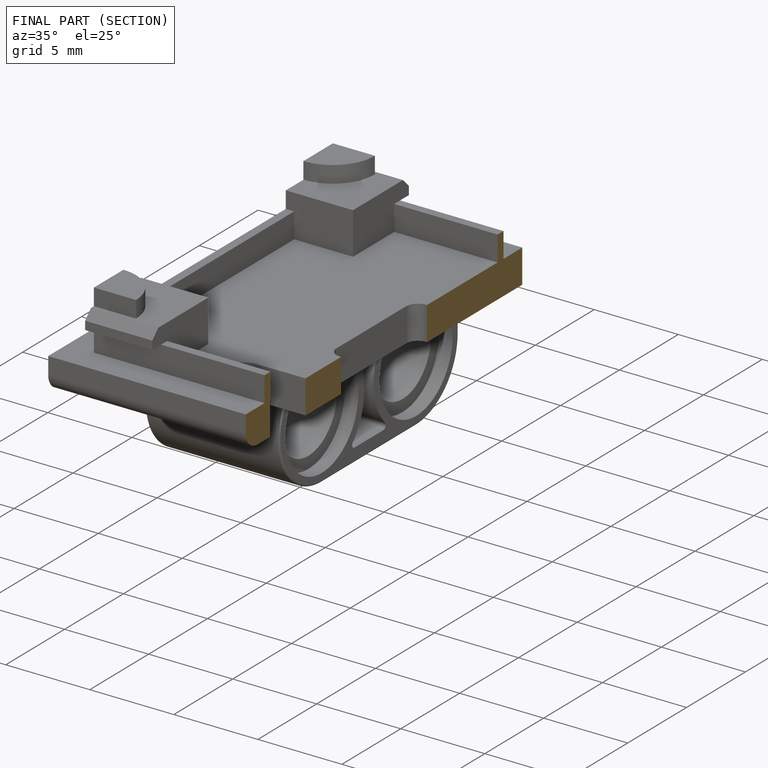
[diagram: finished part — half-section view (interior)]
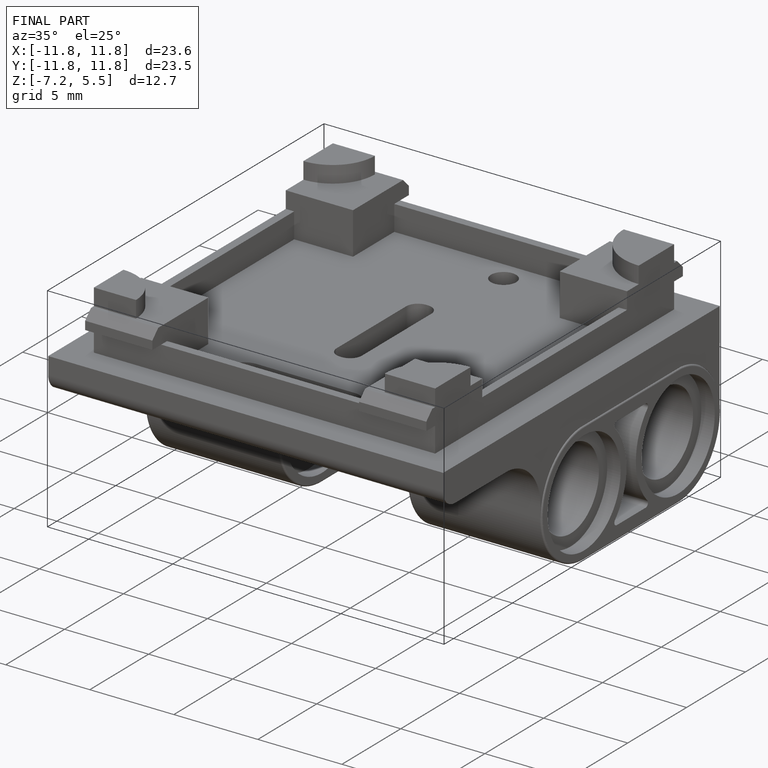
[diagram: finished part — iso view with bounding-box wireframe]
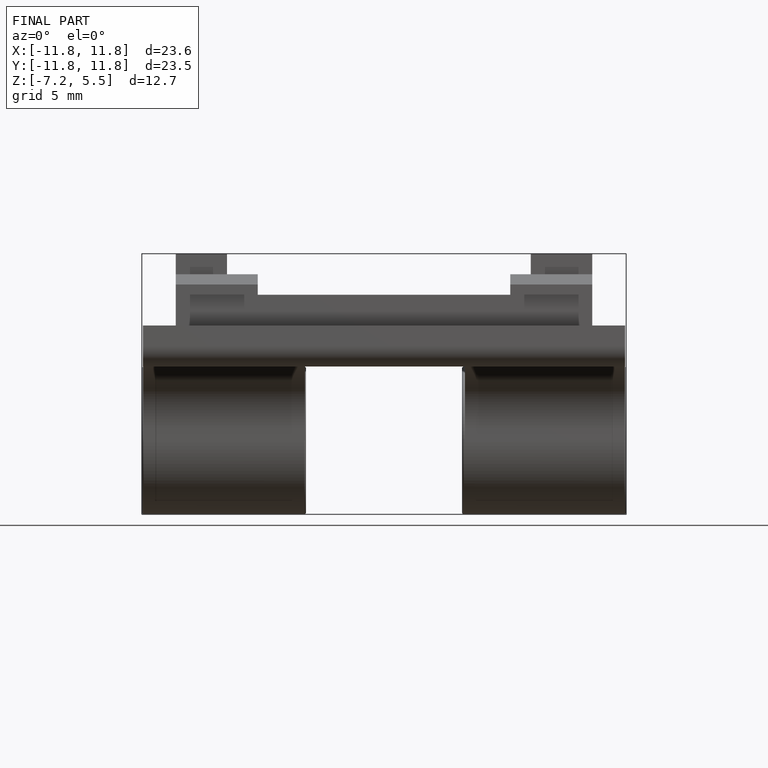
[diagram: finished part — front view with bounding-box wireframe]
